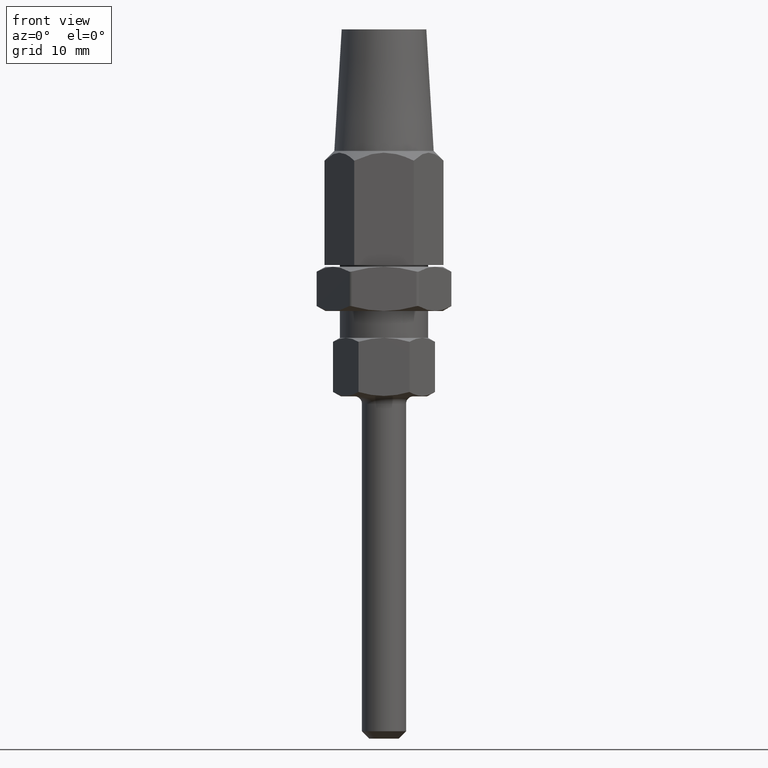
[diagram: clean part render]
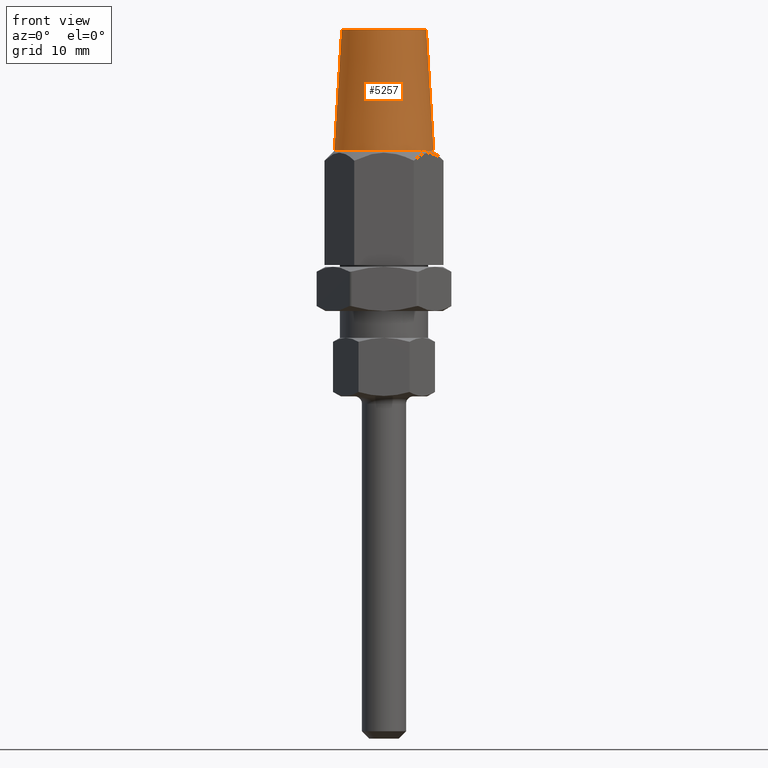
[diagram: same view with one face highlighted and labeled with its STEP entity id]
A machine part, front view. The second image highlights one B-rep face of the part: STEP entity #5257.
In plain terms, the highlighted conical surface has half-angle 3.468 deg.
Its self-contained STEP definition (entity closure, byte-faithful):
#819 = ORIENTED_EDGE ( 'NONE', *, *, #15924, .F. ) ;
#941 = DIRECTION ( 'NONE',  ( -1.092877767060727900E-016, -0.0000000000000000000, -1.000000000000000000 ) ) ;
#1385 = CARTESIAN_POINT ( 'NONE',  ( -5.749999999999998200, 0.0000000000000000000, 32.00000000000000000 ) ) ;
#2054 = CARTESIAN_POINT ( 'NONE',  ( 5.750000000000001800, 7.654042494670957600E-016, 32.00000000000000000 ) ) ;
#2384 = DIRECTION ( 'NONE',  ( -1.000000000000000000, 0.0000000000000000000, 0.0000000000000000000 ) ) ;
#2549 = EDGE_CURVE ( 'NONE', #11463, #16426, #6751, .T. ) ;
#2783 = DIRECTION ( 'NONE',  ( -0.06049506040189051700, 0.0000000000000000000, -0.9981684966311907800 ) ) ;
#2949 = CARTESIAN_POINT ( 'NONE',  ( -5.749999999999998200, 0.0000000000000000000, 32.00000000000000000 ) ) ;
#3095 = EDGE_CURVE ( 'NONE', #12712, #11463, #6951, .T. ) ;
#3837 = VECTOR ( 'NONE', #9719, 1000.000000000000200 ) ;
#3918 = CARTESIAN_POINT ( 'NONE',  ( -6.750000000000000900, 0.0000000000000000000, 15.50000000000000000 ) ) ;
#4001 = VECTOR ( 'NONE', #2783, 1000.000000000000200 ) ;
#4234 = VERTEX_POINT ( 'NONE', #12270 ) ;
#4640 = CONICAL_SURFACE ( 'NONE', #8999, 5.750000000000000000, 0.06053201978210719800 ) ;
#5144 = CARTESIAN_POINT ( 'NONE',  ( 1.728549981472478400E-015, 0.0000000000000000000, 32.00000000000000000 ) ) ;
#5257 = ADVANCED_FACE ( 'NONE', ( #14719 ), #4640, .T. ) ;
#5724 = ORIENTED_EDGE ( 'NONE', *, *, #3095, .T. ) ;
#6669 = AXIS2_PLACEMENT_3D ( 'NONE', #7449, #8785, #9981 ) ;
#6688 = ORIENTED_EDGE ( 'NONE', *, *, #9430, .F. ) ;
#6751 = LINE ( 'NONE', #2949, #4001 ) ;
#6950 = CARTESIAN_POINT ( 'NONE',  ( 5.750000000000001800, 7.041719095097280900E-016, 32.00000000000000000 ) ) ;
#6951 = CIRCLE ( 'NONE', #6669, 5.750000000000000000 ) ;
#7111 = CIRCLE ( 'NONE', #11748, 6.750000000000000900 ) ;
#7394 = CARTESIAN_POINT ( 'NONE',  ( -7.469833417772264100E-017, 0.0000000000000000000, 15.50000000000000000 ) ) ;
#7449 = CARTESIAN_POINT ( 'NONE',  ( 1.728549981472478400E-015, 0.0000000000000000000, 32.00000000000000000 ) ) ;
#8785 = DIRECTION ( 'NONE',  ( -1.092877767060727900E-016, -0.0000000000000000000, -1.000000000000000000 ) ) ;
#8791 = DIRECTION ( 'NONE',  ( -1.000000000000000000, 0.0000000000000000000, 0.0000000000000000000 ) ) ;
#8999 = AXIS2_PLACEMENT_3D ( 'NONE', #5144, #941, #2384 ) ;
#9430 = EDGE_CURVE ( 'NONE', #12712, #4234, #16868, .T. ) ;
#9719 = DIRECTION ( 'NONE',  ( 0.06049506040189029500, 7.408508208540088300E-018, -0.9981684966311907800 ) ) ;
#9981 = DIRECTION ( 'NONE',  ( -1.000000000000000000, 0.0000000000000000000, 0.0000000000000000000 ) ) ;
#11463 = VERTEX_POINT ( 'NONE', #1385 ) ;
#11748 = AXIS2_PLACEMENT_3D ( 'NONE', #7394, #16977, #8791 ) ;
#12270 = CARTESIAN_POINT ( 'NONE',  ( 6.750000000000000900, 8.266365894244635300E-016, 15.50000000000000000 ) ) ;
#12712 = VERTEX_POINT ( 'NONE', #2054 ) ;
#13519 = EDGE_LOOP ( 'NONE', ( #6688, #5724, #17530, #819 ) ) ;
#14719 = FACE_OUTER_BOUND ( 'NONE', #13519, .T. ) ;
#15924 = EDGE_CURVE ( 'NONE', #4234, #16426, #7111, .T. ) ;
#16426 = VERTEX_POINT ( 'NONE', #3918 ) ;
#16868 = LINE ( 'NONE', #6950, #3837 ) ;
#16977 = DIRECTION ( 'NONE',  ( 4.819247366304686200E-018, -0.0000000000000000000, -1.000000000000000000 ) ) ;
#17530 = ORIENTED_EDGE ( 'NONE', *, *, #2549, .T. ) ;